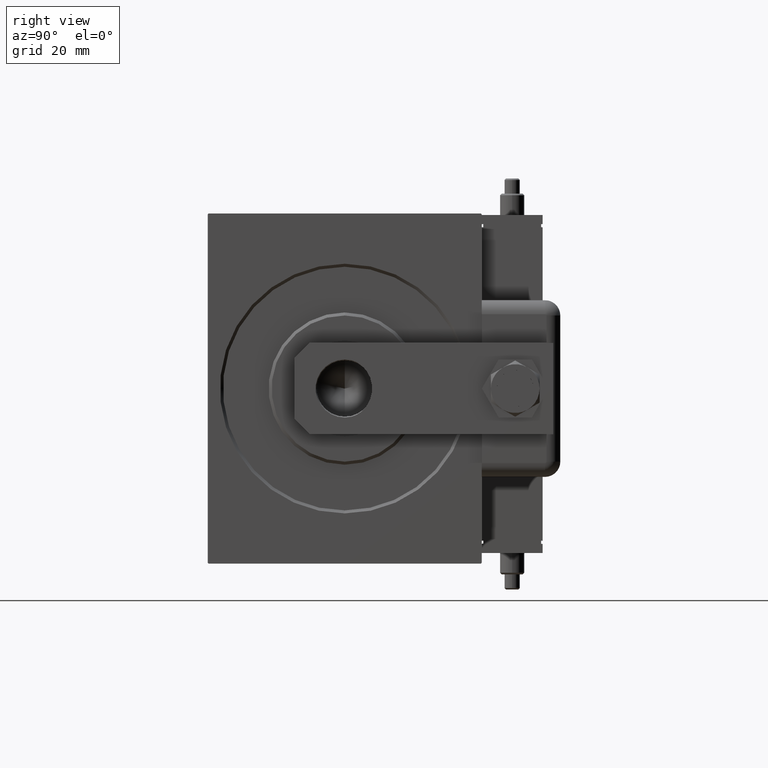
[diagram: clean part render]
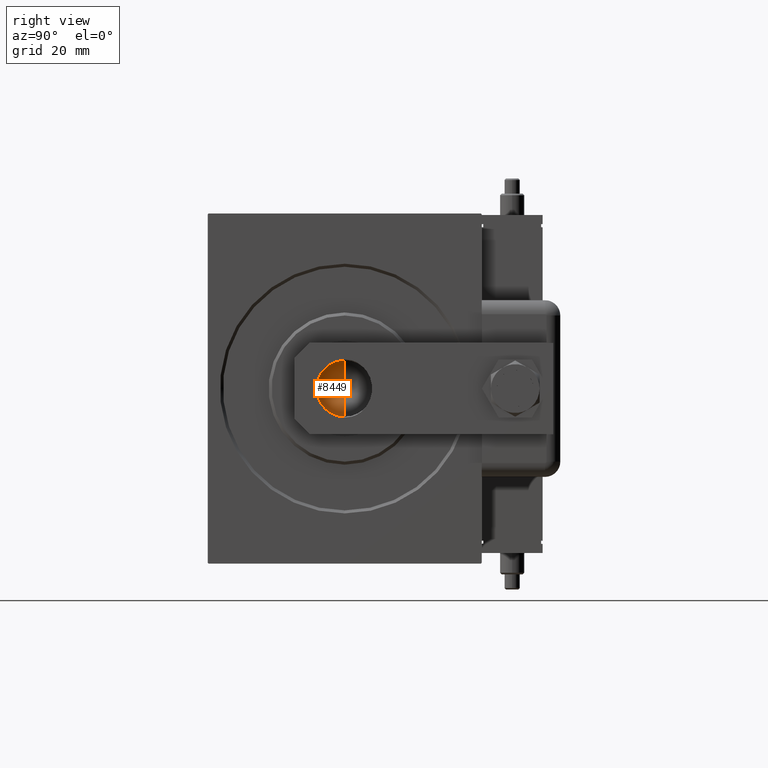
[diagram: same view with one face highlighted and labeled with its STEP entity id]
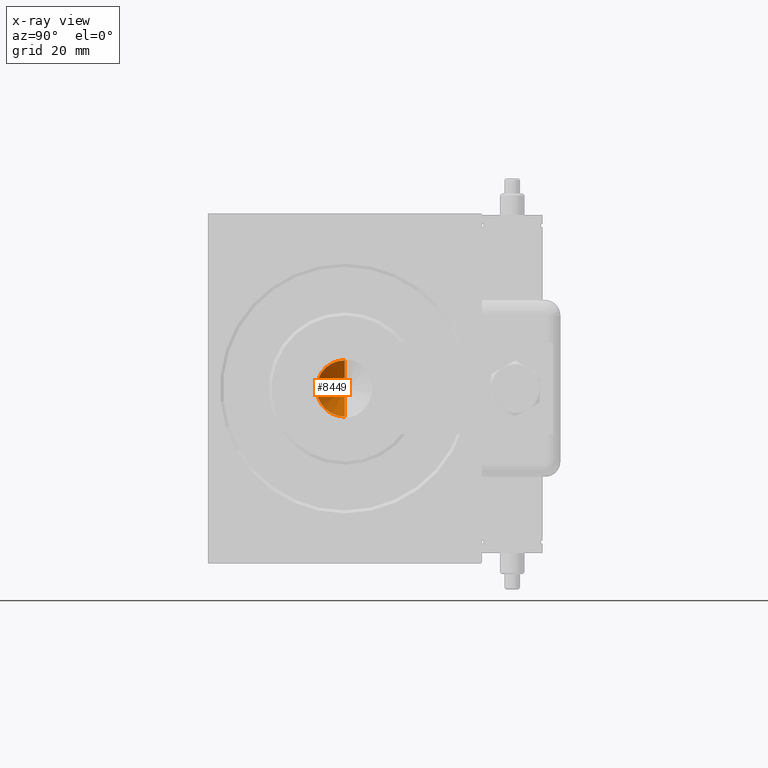
[diagram: x-ray of the same camera — body ghosted, the highlighted face saturated]
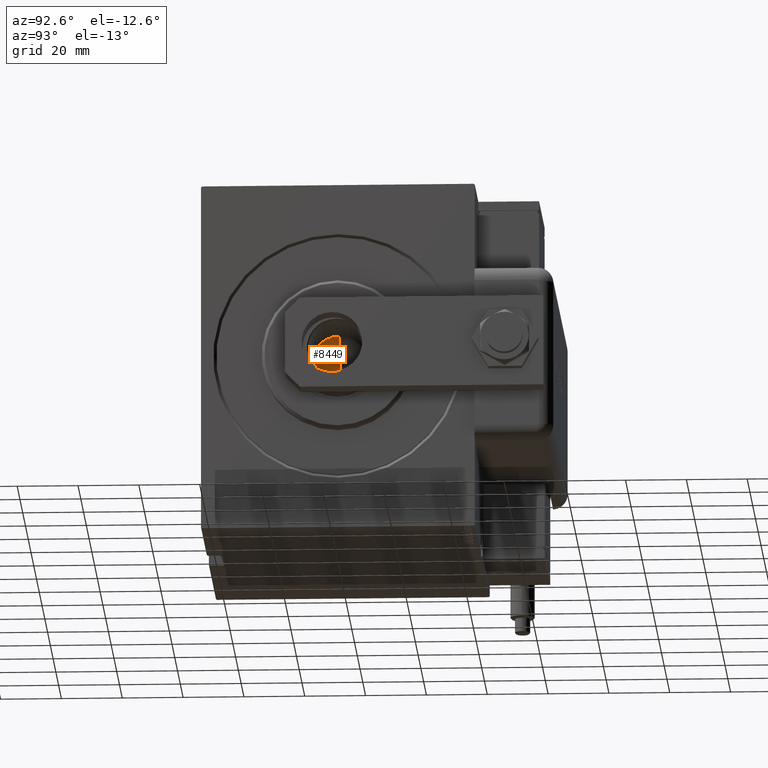
[diagram: same view with one face highlighted and labeled with its STEP entity id]
A machine part, right view. The second image highlights one B-rep face of the part: STEP entity #8449.
The next image is the same camera in x-ray: the body ghosted, the highlighted face saturated — about 0% of this face is hidden behind the body in this view.
A second angle (auxiliary view) of the same face is appended — the face is thin or edge-on in the first view.
In plain terms, the highlighted conical surface has half-angle 59 deg.
Its self-contained STEP definition (entity closure, byte-faithful):
#1812 = CARTESIAN_POINT ( 'NONE',  ( -9.249999999999994671, 1.132798289211300909E-15, 79.00000000000001421 ) ) ;
#7072 = AXIS2_PLACEMENT_3D ( 'NONE', #40553, #11326, #29917 ) ;
#7459 = DIRECTION ( 'NONE',  ( 0.8571673007021113344, 0.000000000000000000, 0.5150380749100558209 ) ) ;
#7877 = CARTESIAN_POINT ( 'NONE',  ( -6.793016015247754405E-15, 0.000000000000000000, 73.44203927399506426 ) ) ;
#7950 = FACE_OUTER_BOUND ( 'NONE', #58823, .T. ) ;
#8449 = ADVANCED_FACE ( 'NONE', ( #7950 ), #22579, .F. ) ;
#8808 = CARTESIAN_POINT ( 'NONE',  ( -9.249999999999994671, 1.132798289211300909E-15, 79.00000000000001421 ) ) ;
#9100 = DIRECTION ( 'NONE',  ( -0.8571673007021113344, 1.049727191138617463E-16, 0.5150380749100558209 ) ) ;
#11326 = DIRECTION ( 'NONE',  ( -0.000000000000000000, -0.000000000000000000, 1.000000000000000000 ) ) ;
#15661 = ORIENTED_EDGE ( 'NONE', *, *, #48297, .T. ) ;
#22579 = CONICAL_SURFACE ( 'NONE', #7072, 9.249999999999994671, 1.029744258676652535 ) ;
#24218 = VECTOR ( 'NONE', #7459, 1000.000000000000000 ) ;
#28338 = ORIENTED_EDGE ( 'NONE', *, *, #31691, .F. ) ;
#29297 = VERTEX_POINT ( 'NONE', #44451 ) ;
#29886 = AXIS2_PLACEMENT_3D ( 'NONE', #48398, #33773, #48704 ) ;
#29917 = DIRECTION ( 'NONE',  ( 1.000000000000000000, 0.000000000000000000, 0.000000000000000000 ) ) ;
#30380 = VERTEX_POINT ( 'NONE', #7877 ) ;
#30794 = VECTOR ( 'NONE', #9100, 1000.000000000000000 ) ;
#31691 = EDGE_CURVE ( 'NONE', #30380, #29297, #49510, .T. ) ;
#33773 = DIRECTION ( 'NONE',  ( -0.000000000000000000, -0.000000000000000000, 1.000000000000000000 ) ) ;
#40205 = VERTEX_POINT ( 'NONE', #1812 ) ;
#40553 = CARTESIAN_POINT ( 'NONE',  ( 0.000000000000000000, 0.000000000000000000, 79.00000000000001421 ) ) ;
#44451 = CARTESIAN_POINT ( 'NONE',  ( 9.249999999999994671, 0.000000000000000000, 79.00000000000001421 ) ) ;
#48297 = EDGE_CURVE ( 'NONE', #30380, #40205, #55701, .T. ) ;
#48398 = CARTESIAN_POINT ( 'NONE',  ( 0.000000000000000000, 0.000000000000000000, 79.00000000000001421 ) ) ;
#48704 = DIRECTION ( 'NONE',  ( 1.000000000000000000, 0.000000000000000000, 0.000000000000000000 ) ) ;
#48915 = CARTESIAN_POINT ( 'NONE',  ( 9.249999999999994671, 0.000000000000000000, 79.00000000000001421 ) ) ;
#49190 = EDGE_CURVE ( 'NONE', #40205, #29297, #58054, .T. ) ;
#49510 = LINE ( 'NONE', #48915, #24218 ) ;
#55701 = LINE ( 'NONE', #8808, #30794 ) ;
#57125 = ORIENTED_EDGE ( 'NONE', *, *, #49190, .T. ) ;
#58054 = CIRCLE ( 'NONE', #29886, 9.249999999999994671 ) ;
#58823 = EDGE_LOOP ( 'NONE', ( #28338, #15661, #57125 ) ) ;